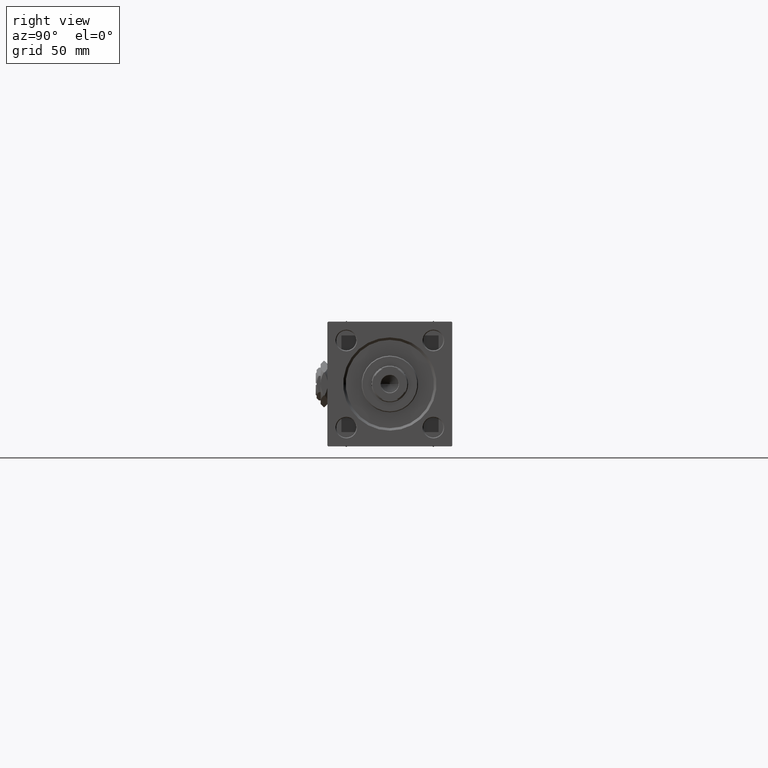
[diagram: clean part render]
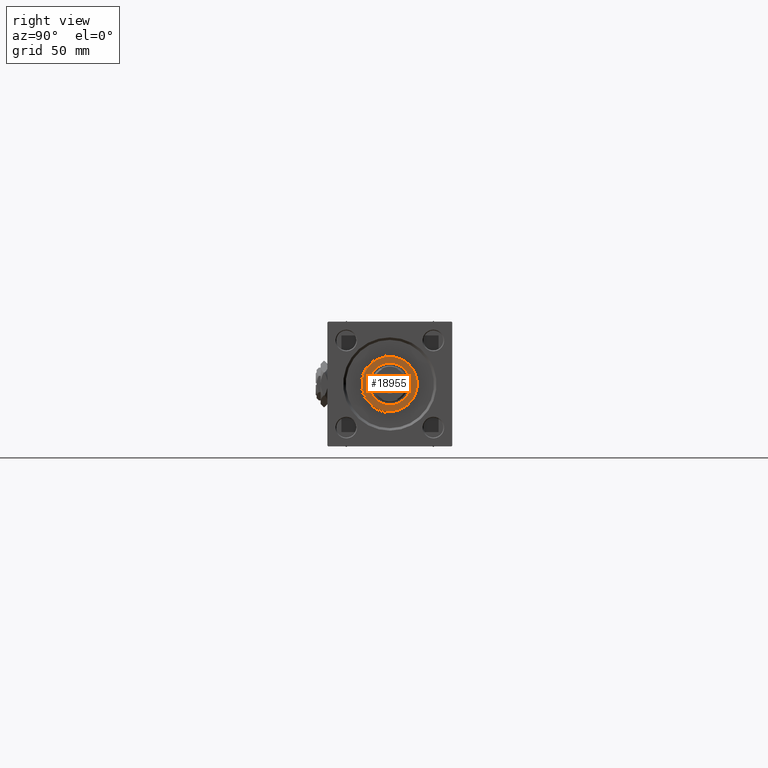
[diagram: same view with one face highlighted and labeled with its STEP entity id]
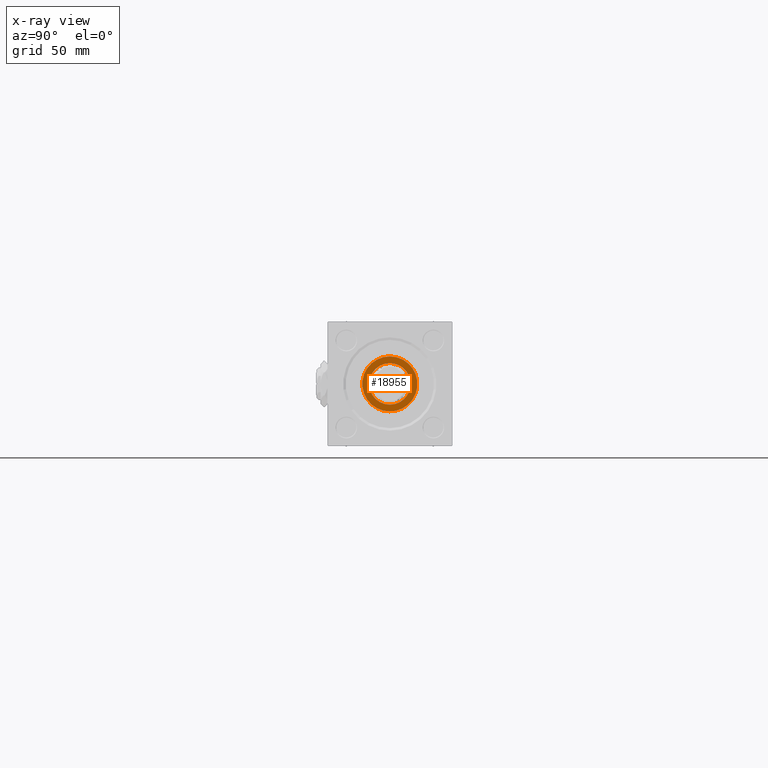
[diagram: x-ray of the same camera — body ghosted, the highlighted face saturated]
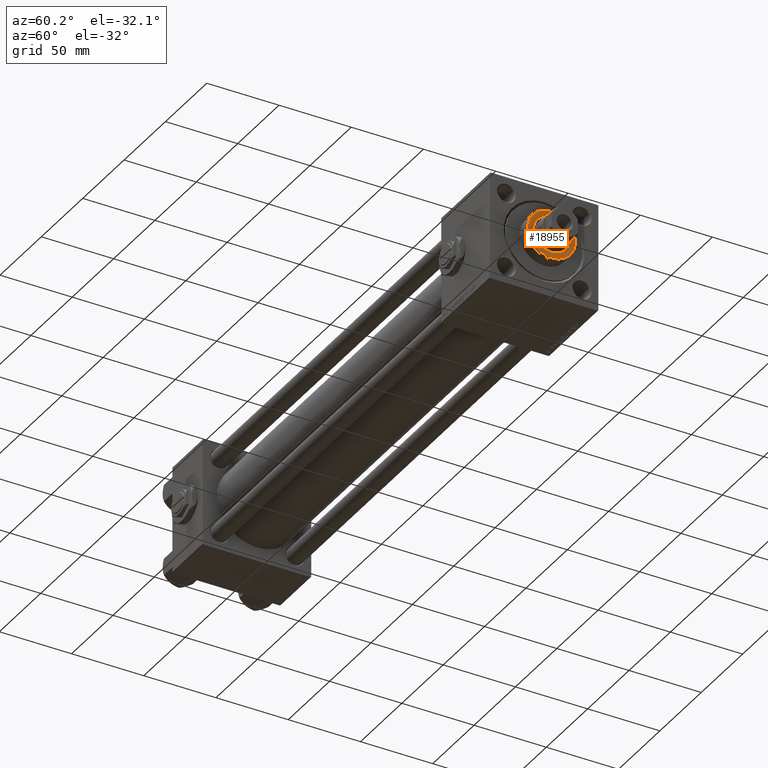
[diagram: same view with one face highlighted and labeled with its STEP entity id]
A machine part, right view. The second image highlights one B-rep face of the part: STEP entity #18955.
The next image is the same camera in x-ray: the body ghosted, the highlighted face saturated — about 0% of this face is hidden behind the body in this view.
A second angle (auxiliary view) of the same face is appended — the face is thin or edge-on in the first view.
In plain terms, the highlighted planar face has unit normal (1, 0, 0).
Its self-contained STEP definition (entity closure, byte-faithful):
#1088 = EDGE_CURVE ( 'NONE', #17982, #27507, #39266, .T. ) ;
#1623 = CARTESIAN_POINT ( 'NONE',  ( 0.000000000000000000, 0.000000000000000000, 37.69999999999999574 ) ) ;
#1728 = EDGE_LOOP ( 'NONE', ( #14064, #49956 ) ) ;
#2165 = CARTESIAN_POINT ( 'NONE',  ( 0.000000000000000000, 0.000000000000000000, 37.69999999999999574 ) ) ;
#3921 = AXIS2_PLACEMENT_3D ( 'NONE', #29349, #5335, #21435 ) ;
#5335 = DIRECTION ( 'NONE',  ( 0.000000000000000000, 0.000000000000000000, 1.000000000000000000 ) ) ;
#7856 = ORIENTED_EDGE ( 'NONE', *, *, #26943, .F. ) ;
#9211 = DIRECTION ( 'NONE',  ( 1.000000000000000000, 0.000000000000000000, -0.000000000000000000 ) ) ;
#12260 = CIRCLE ( 'NONE', #21511, 16.50000000000000000 ) ;
#12658 = FACE_OUTER_BOUND ( 'NONE', #1728, .T. ) ;
#13734 = ORIENTED_EDGE ( 'NONE', *, *, #1088, .F. ) ;
#14064 = ORIENTED_EDGE ( 'NONE', *, *, #35505, .T. ) ;
#16867 = CARTESIAN_POINT ( 'NONE',  ( 0.000000000000000000, 0.000000000000000000, 37.69999999999999574 ) ) ;
#17121 = FACE_BOUND ( 'NONE', #28071, .T. ) ;
#17183 = DIRECTION ( 'NONE',  ( 0.000000000000000000, 0.000000000000000000, 1.000000000000000000 ) ) ;
#17982 = VERTEX_POINT ( 'NONE', #41053 ) ;
#18041 = AXIS2_PLACEMENT_3D ( 'NONE', #1623, #17183, #30100 ) ;
#18955 = ADVANCED_FACE ( 'NONE', ( #17121, #12658 ), #33204, .T. ) ;
#21435 = DIRECTION ( 'NONE',  ( 1.000000000000000000, 0.000000000000000000, 0.000000000000000000 ) ) ;
#21511 = AXIS2_PLACEMENT_3D ( 'NONE', #32896, #49003, #45305 ) ;
#22468 = DIRECTION ( 'NONE',  ( 0.000000000000000000, 0.000000000000000000, 1.000000000000000000 ) ) ;
#25912 = CARTESIAN_POINT ( 'NONE',  ( 16.50000000000000000, 2.051283388571816887E-15, 37.69999999999999574 ) ) ;
#26943 = EDGE_CURVE ( 'NONE', #27507, #17982, #45849, .T. ) ;
#27507 = VERTEX_POINT ( 'NONE', #38350 ) ;
#28071 = EDGE_LOOP ( 'NONE', ( #13734, #7856 ) ) ;
#28694 = CIRCLE ( 'NONE', #49760, 16.50000000000000000 ) ;
#29261 = DIRECTION ( 'NONE',  ( 0.000000000000000000, 0.000000000000000000, 1.000000000000000000 ) ) ;
#29349 = CARTESIAN_POINT ( 'NONE',  ( 0.000000000000000000, 0.000000000000000000, 37.69999999999999574 ) ) ;
#30100 = DIRECTION ( 'NONE',  ( 1.000000000000000000, 0.000000000000000000, 0.000000000000000000 ) ) ;
#32481 = VERTEX_POINT ( 'NONE', #25912 ) ;
#32896 = CARTESIAN_POINT ( 'NONE',  ( 0.000000000000000000, 0.000000000000000000, 37.69999999999999574 ) ) ;
#33204 = PLANE ( 'NONE',  #33905 ) ;
#33905 = AXIS2_PLACEMENT_3D ( 'NONE', #16867, #29261, #9211 ) ;
#35505 = EDGE_CURVE ( 'NONE', #43369, #32481, #12260, .T. ) ;
#36021 = CARTESIAN_POINT ( 'NONE',  ( -16.50000000000000000, 0.000000000000000000, 37.69999999999999574 ) ) ;
#38350 = CARTESIAN_POINT ( 'NONE',  ( -12.50000000000000000, 1.530808498934191521E-15, 37.69999999999999574 ) ) ;
#39266 = CIRCLE ( 'NONE', #3921, 12.50000000000000000 ) ;
#41053 = CARTESIAN_POINT ( 'NONE',  ( 12.50000000000000000, 0.000000000000000000, 37.69999999999999574 ) ) ;
#42003 = DIRECTION ( 'NONE',  ( 1.000000000000000000, 0.000000000000000000, 0.000000000000000000 ) ) ;
#43369 = VERTEX_POINT ( 'NONE', #36021 ) ;
#45305 = DIRECTION ( 'NONE',  ( 1.000000000000000000, 0.000000000000000000, 0.000000000000000000 ) ) ;
#45849 = CIRCLE ( 'NONE', #18041, 12.50000000000000000 ) ;
#49003 = DIRECTION ( 'NONE',  ( 0.000000000000000000, 0.000000000000000000, 1.000000000000000000 ) ) ;
#49760 = AXIS2_PLACEMENT_3D ( 'NONE', #2165, #22468, #42003 ) ;
#49956 = ORIENTED_EDGE ( 'NONE', *, *, #51748, .T. ) ;
#51748 = EDGE_CURVE ( 'NONE', #32481, #43369, #28694, .T. ) ;